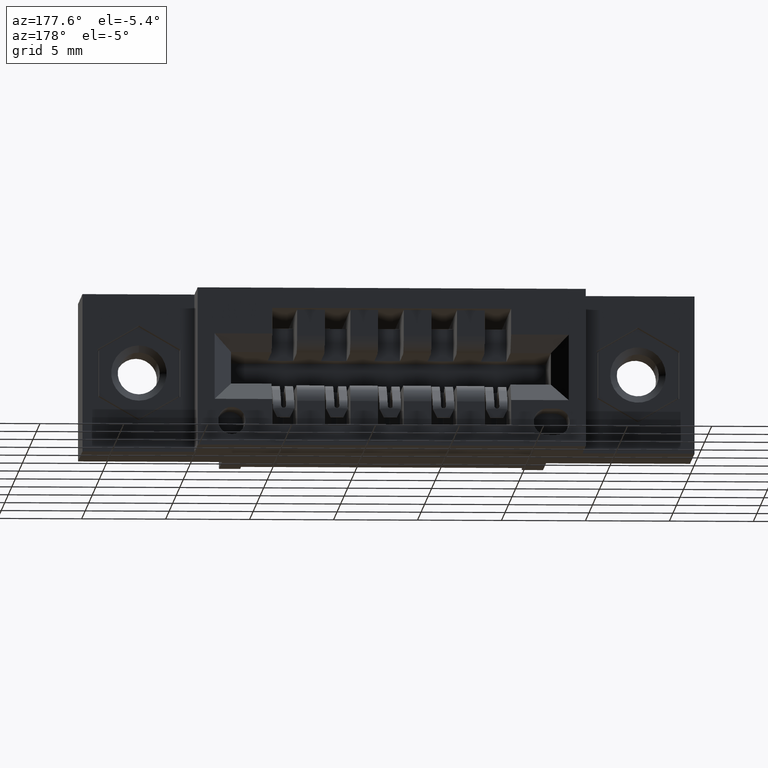
[diagram: clean part render]
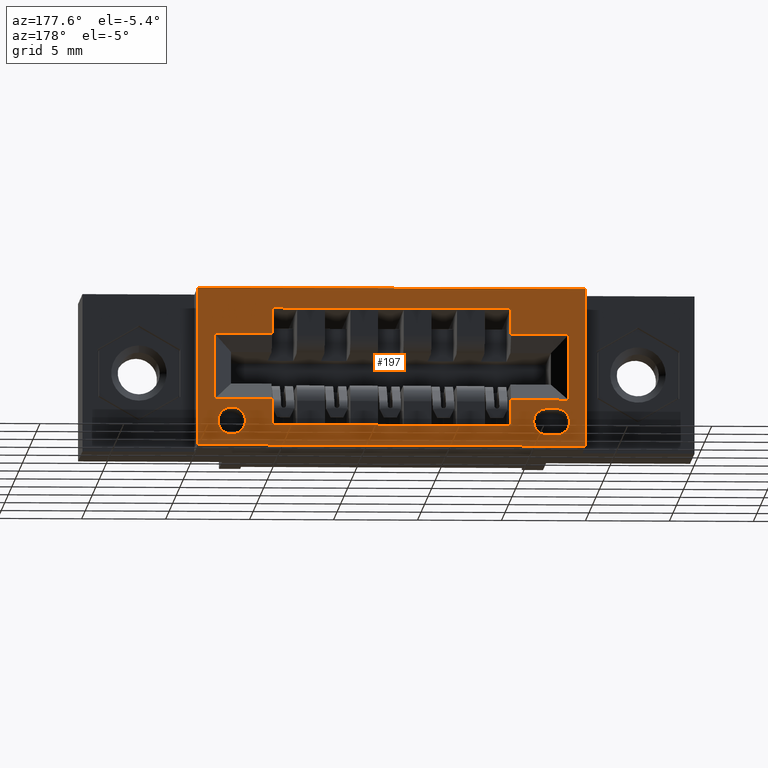
[diagram: same view with one face highlighted and labeled with its STEP entity id]
A machine part, auxiliary view. The second image highlights one B-rep face of the part: STEP entity #197.
In plain terms, the highlighted planar face has unit normal (0, -1, 0).
Its self-contained STEP definition (entity closure, byte-faithful):
#123 = LINE ( 'NONE', #1529, #3059 ) ;
#197 = ADVANCED_FACE ( 'NONE', ( #2745, #8576, #1421, #9189 ), #1234, .F. ) ;
#226 = LINE ( 'NONE', #5295, #3728 ) ;
#308 = VERTEX_POINT ( 'NONE', #8101 ) ;
#346 = CARTESIAN_POINT ( 'NONE',  ( 0.0000000000000000000, 0.5999999999999999778, -0.2620000000000000662 ) ) ;
#426 = DIRECTION ( 'NONE',  ( 0.0000000000000000000, 0.0000000000000000000, -1.000000000000000000 ) ) ;
#433 = LINE ( 'NONE', #8945, #1124 ) ;
#530 = CARTESIAN_POINT ( 'NONE',  ( 0.3315000000000000169, 0.5999999999999999778, -0.2820000000000000839 ) ) ;
#646 = EDGE_CURVE ( 'NONE', #6230, #3064, #3372, .T. ) ;
#743 = EDGE_CURVE ( 'NONE', #7754, #2103, #8076, .T. ) ;
#759 = EDGE_CURVE ( 'NONE', #4172, #9157, #2433, .T. ) ;
#1062 = ORIENTED_EDGE ( 'NONE', *, *, #7926, .F. ) ;
#1063 = CARTESIAN_POINT ( 'NONE',  ( 0.3025000000000000466, 0.5999999999999999778, -0.1080000000000000820 ) ) ;
#1101 = ORIENTED_EDGE ( 'NONE', *, *, #1269, .T. ) ;
#1124 = VECTOR ( 'NONE', #8378, 39.37007874015748143 ) ;
#1145 = DIRECTION ( 'NONE',  ( 0.0000000000000000000, 1.000000000000000000, 0.0000000000000000000 ) ) ;
#1161 = EDGE_LOOP ( 'NONE', ( #2152, #1062, #3889, #1163 ) ) ;
#1163 = ORIENTED_EDGE ( 'NONE', *, *, #2160, .F. ) ;
#1234 = PLANE ( 'NONE',  #8680 ) ;
#1269 = EDGE_CURVE ( 'NONE', #8289, #8028, #8960, .T. ) ;
#1329 = EDGE_CURVE ( 'NONE', #9108, #7754, #1413, .T. ) ;
#1360 = VECTOR ( 'NONE', #1602, 39.37007874015748143 ) ;
#1371 = CARTESIAN_POINT ( 'NONE',  ( 0.0000000000000000000, 0.5999999999999999778, -0.3700000000000001621 ) ) ;
#1374 = VECTOR ( 'NONE', #8442, 39.37007874015748143 ) ;
#1413 = CIRCLE ( 'NONE', #3223, 0.03100000000000009345 ) ;
#1421 = FACE_OUTER_BOUND ( 'NONE', #1161, .T. ) ;
#1529 = CARTESIAN_POINT ( 'NONE',  ( 0.4375000000000000555, 0.5999999999999999778, -0.3224999999999998423 ) ) ;
#1553 = CARTESIAN_POINT ( 'NONE',  ( 0.0000000000000000000, 0.5999999999999999778, -0.1080000000000000820 ) ) ;
#1555 = VECTOR ( 'NONE', #8861, 39.37007874015748143 ) ;
#1602 = DIRECTION ( 'NONE',  ( 1.000000000000000000, 0.0000000000000000000, 0.0000000000000000000 ) ) ;
#1610 = CARTESIAN_POINT ( 'NONE',  ( 1.132500000000000506, 0.5999999999999999778, -0.3700000000000001621 ) ) ;
#1630 = CARTESIAN_POINT ( 'NONE',  ( 0.4375000000000000555, 0.5999999999999999778, -0.2620000000000000662 ) ) ;
#1639 = CARTESIAN_POINT ( 'NONE',  ( 1.132500000000000506, 0.5999999999999999778, -0.2620000000000000662 ) ) ;
#1648 = DIRECTION ( 'NONE',  ( 0.0000000000000000000, 1.000000000000000000, 0.0000000000000000000 ) ) ;
#1725 = EDGE_CURVE ( 'NONE', #8838, #2113, #433, .T. ) ;
#1736 = VECTOR ( 'NONE', #7494, 39.37007874015748143 ) ;
#1781 = CARTESIAN_POINT ( 'NONE',  ( 0.4375000000000000555, 0.5999999999999999778, -0.3224999999999998423 ) ) ;
#1795 = DIRECTION ( 'NONE',  ( 0.0000000000000000000, -2.483498176058424693E-16, 1.000000000000000000 ) ) ;
#1857 = VECTOR ( 'NONE', #2340, 39.37007874015748143 ) ;
#2065 = CARTESIAN_POINT ( 'NONE',  ( 0.4375000000000000555, 0.5999999999999998668, -0.04750000000000024342 ) ) ;
#2103 = VERTEX_POINT ( 'NONE', #4024 ) ;
#2108 = VECTOR ( 'NONE', #8146, 39.37007874015748143 ) ;
#2113 = VERTEX_POINT ( 'NONE', #3154 ) ;
#2152 = ORIENTED_EDGE ( 'NONE', *, *, #6092, .T. ) ;
#2160 = EDGE_CURVE ( 'NONE', #7418, #7468, #2589, .T. ) ;
#2206 = DIRECTION ( 'NONE',  ( 1.000000000000000000, 0.0000000000000000000, 0.0000000000000000000 ) ) ;
#2215 = CARTESIAN_POINT ( 'NONE',  ( 0.3315000000000000724, 0.5999999999999999778, -0.3130000000000000560 ) ) ;
#2236 = CARTESIAN_POINT ( 'NONE',  ( 0.3534999999999999254, 0.5999999999999999778, -0.3440000000000001945 ) ) ;
#2281 = CARTESIAN_POINT ( 'NONE',  ( 0.3534999999999999254, 0.5999999999999999778, -0.2819999999999999729 ) ) ;
#2326 = EDGE_LOOP ( 'NONE', ( #2840, #3076 ) ) ;
#2340 = DIRECTION ( 'NONE',  ( 0.0000000000000000000, -2.483498176058424693E-16, 1.000000000000000000 ) ) ;
#2362 = CARTESIAN_POINT ( 'NONE',  ( 0.0000000000000000000, 0.5999999999999999778, -0.2620000000000000662 ) ) ;
#2433 = LINE ( 'NONE', #8834, #1857 ) ;
#2499 = CIRCLE ( 'NONE', #8246, 0.03099999999999998937 ) ;
#2520 = DIRECTION ( 'NONE',  ( 0.0000000000000000000, 0.0000000000000000000, 1.000000000000000000 ) ) ;
#2589 = LINE ( 'NONE', #5347, #7939 ) ;
#2720 = CARTESIAN_POINT ( 'NONE',  ( 0.4375000000000000555, 0.5999999999999999778, -0.3224999999999998423 ) ) ;
#2732 = VECTOR ( 'NONE', #4624, 39.37007874015748143 ) ;
#2745 = FACE_BOUND ( 'NONE', #2326, .T. ) ;
#2784 = EDGE_CURVE ( 'NONE', #7270, #4954, #6648, .T. ) ;
#2840 = ORIENTED_EDGE ( 'NONE', *, *, #7491, .F. ) ;
#2862 = ORIENTED_EDGE ( 'NONE', *, *, #2784, .T. ) ;
#2959 = ORIENTED_EDGE ( 'NONE', *, *, #4454, .F. ) ;
#2989 = EDGE_CURVE ( 'NONE', #2113, #4385, #8949, .T. ) ;
#2996 = LINE ( 'NONE', #6096, #2732 ) ;
#3059 = VECTOR ( 'NONE', #5142, 39.37007874015748143 ) ;
#3064 = VERTEX_POINT ( 'NONE', #6405 ) ;
#3076 = ORIENTED_EDGE ( 'NONE', *, *, #646, .F. ) ;
#3154 = CARTESIAN_POINT ( 'NONE',  ( 0.9974999999999999423, 0.5999999999999999778, -0.3224999999999997868 ) ) ;
#3163 = ORIENTED_EDGE ( 'NONE', *, *, #1725, .T. ) ;
#3223 = AXIS2_PLACEMENT_3D ( 'NONE', #4842, #1145, #2520 ) ;
#3224 = VECTOR ( 'NONE', #5910, 39.37007874015748143 ) ;
#3304 = ORIENTED_EDGE ( 'NONE', *, *, #1329, .F. ) ;
#3311 = CARTESIAN_POINT ( 'NONE',  ( 0.9974999999999999423, 0.5999999999999998668, -0.1080000000000000820 ) ) ;
#3372 = CIRCLE ( 'NONE', #8364, 0.03200000000000033373 ) ;
#3384 = DIRECTION ( 'NONE',  ( 0.0000000000000000000, -2.483498176058424693E-16, 1.000000000000000000 ) ) ;
#3728 = VECTOR ( 'NONE', #2206, 39.37007874015748143 ) ;
#3734 = CARTESIAN_POINT ( 'NONE',  ( 0.9974999999999999423, 0.5999999999999999778, -0.2620000000000000662 ) ) ;
#3800 = EDGE_LOOP ( 'NONE', ( #4623, #7090, #6164, #1101, #9194, #3163, #7375, #6626, #2862, #8587, #6866, #6963 ) ) ;
#3881 = LINE ( 'NONE', #6345, #4022 ) ;
#3889 = ORIENTED_EDGE ( 'NONE', *, *, #4548, .T. ) ;
#3898 = EDGE_CURVE ( 'NONE', #9215, #8289, #4987, .T. ) ;
#4022 = VECTOR ( 'NONE', #9206, 39.37007874015748143 ) ;
#4024 = CARTESIAN_POINT ( 'NONE',  ( 0.3315000000000000169, 0.5999999999999999778, -0.3440000000000000835 ) ) ;
#4089 = CARTESIAN_POINT ( 'NONE',  ( 0.0000000000000000000, 0.5999999999999999778, -0.1080000000000000820 ) ) ;
#4106 = EDGE_CURVE ( 'NONE', #8515, #9108, #6975, .T. ) ;
#4172 = VERTEX_POINT ( 'NONE', #3311 ) ;
#4196 = VERTEX_POINT ( 'NONE', #5692 ) ;
#4385 = VERTEX_POINT ( 'NONE', #3734 ) ;
#4454 = EDGE_CURVE ( 'NONE', #2103, #8515, #2499, .T. ) ;
#4548 = EDGE_CURVE ( 'NONE', #7511, #7468, #3881, .T. ) ;
#4623 = ORIENTED_EDGE ( 'NONE', *, *, #8972, .F. ) ;
#4624 = DIRECTION ( 'NONE',  ( -0.0000000000000000000, -0.0000000000000000000, 1.000000000000000000 ) ) ;
#4842 = CARTESIAN_POINT ( 'NONE',  ( 0.3534999999999999254, 0.5999999999999999778, -0.3130000000000000560 ) ) ;
#4954 = VERTEX_POINT ( 'NONE', #8349 ) ;
#4987 = LINE ( 'NONE', #5127, #1736 ) ;
#5118 = DIRECTION ( 'NONE',  ( 0.0000000000000000000, 0.0000000000000000000, 1.000000000000000000 ) ) ;
#5127 = CARTESIAN_POINT ( 'NONE',  ( 0.3025000000000000466, 0.5999999999999999778, -0.3700000000000001621 ) ) ;
#5142 = DIRECTION ( 'NONE',  ( 0.0000000000000000000, -2.483498176058424693E-16, 1.000000000000000000 ) ) ;
#5191 = DIRECTION ( 'NONE',  ( 0.0000000000000000000, 0.0000000000000000000, 1.000000000000000000 ) ) ;
#5240 = DIRECTION ( 'NONE',  ( 0.0000000000000000000, 1.000000000000000000, 0.0000000000000000000 ) ) ;
#5248 = CARTESIAN_POINT ( 'NONE',  ( 1.092500000000000471, 0.5999999999999999778, -0.3450000000000004174 ) ) ;
#5260 = LINE ( 'NONE', #1553, #2108 ) ;
#5295 = CARTESIAN_POINT ( 'NONE',  ( 0.0000000000000000000, 0.5999999999999999778, 0.0000000000000000000 ) ) ;
#5331 = EDGE_CURVE ( 'NONE', #8490, #9157, #9006, .T. ) ;
#5347 = CARTESIAN_POINT ( 'NONE',  ( 0.2625000000000000111, 0.5999999999999999778, 0.0000000000000000000 ) ) ;
#5410 = CARTESIAN_POINT ( 'NONE',  ( 0.9974999999999999423, 0.5999999999999999778, -0.3224999999999997868 ) ) ;
#5467 = AXIS2_PLACEMENT_3D ( 'NONE', #6722, #6109, #8981 ) ;
#5516 = VECTOR ( 'NONE', #1795, 39.37007874015748143 ) ;
#5588 = CARTESIAN_POINT ( 'NONE',  ( 0.3315000000000000169, 0.5999999999999999778, -0.2820000000000000839 ) ) ;
#5692 = CARTESIAN_POINT ( 'NONE',  ( 0.4375000000000000555, 0.5999999999999998668, -0.1080000000000000820 ) ) ;
#5887 = LINE ( 'NONE', #2362, #1360 ) ;
#5910 = DIRECTION ( 'NONE',  ( -1.000000000000000000, -0.0000000000000000000, 6.208745440146073961E-15 ) ) ;
#5927 = CIRCLE ( 'NONE', #5467, 0.03200000000000033373 ) ;
#6092 = EDGE_CURVE ( 'NONE', #7418, #308, #226, .T. ) ;
#6096 = CARTESIAN_POINT ( 'NONE',  ( 1.172500000000000764, 0.5999999999999999778, 0.0000000000000000000 ) ) ;
#6109 = DIRECTION ( 'NONE',  ( 0.0000000000000000000, 1.000000000000000000, 0.0000000000000000000 ) ) ;
#6137 = DIRECTION ( 'NONE',  ( 1.000000000000000000, 0.0000000000000000000, 0.0000000000000000000 ) ) ;
#6164 = ORIENTED_EDGE ( 'NONE', *, *, #3898, .T. ) ;
#6230 = VERTEX_POINT ( 'NONE', #5248 ) ;
#6269 = DIRECTION ( 'NONE',  ( 1.000000000000000000, 0.0000000000000000000, 3.104372720073036980E-15 ) ) ;
#6345 = CARTESIAN_POINT ( 'NONE',  ( 0.0000000000000000000, 0.5999999999999999778, -0.3700000000000001621 ) ) ;
#6365 = DIRECTION ( 'NONE',  ( 0.0000000000000000000, -0.0000000000000000000, -1.000000000000000000 ) ) ;
#6405 = CARTESIAN_POINT ( 'NONE',  ( 1.092500000000000471, 0.5999999999999999778, -0.2809999999999996945 ) ) ;
#6596 = EDGE_LOOP ( 'NONE', ( #8872, #2959, #7974, #3304 ) ) ;
#6626 = ORIENTED_EDGE ( 'NONE', *, *, #7045, .T. ) ;
#6648 = LINE ( 'NONE', #1610, #1555 ) ;
#6701 = VECTOR ( 'NONE', #3384, 39.37007874015748143 ) ;
#6722 = CARTESIAN_POINT ( 'NONE',  ( 1.092500000000000471, 0.5999999999999999778, -0.3130000000000000560 ) ) ;
#6772 = CARTESIAN_POINT ( 'NONE',  ( 1.172500000000000764, 0.5999999999999999778, -0.3699999999999999400 ) ) ;
#6866 = ORIENTED_EDGE ( 'NONE', *, *, #759, .T. ) ;
#6963 = ORIENTED_EDGE ( 'NONE', *, *, #5331, .F. ) ;
#6975 = LINE ( 'NONE', #530, #7944 ) ;
#6986 = LINE ( 'NONE', #4089, #1374 ) ;
#7045 = EDGE_CURVE ( 'NONE', #4385, #7270, #5887, .T. ) ;
#7077 = DIRECTION ( 'NONE',  ( 0.0000000000000000000, -1.000000000000000000, 0.0000000000000000000 ) ) ;
#7090 = ORIENTED_EDGE ( 'NONE', *, *, #7091, .T. ) ;
#7091 = EDGE_CURVE ( 'NONE', #4196, #9215, #5260, .T. ) ;
#7270 = VERTEX_POINT ( 'NONE', #1639 ) ;
#7364 = VECTOR ( 'NONE', #9185, 39.37007874015748143 ) ;
#7375 = ORIENTED_EDGE ( 'NONE', *, *, #2989, .T. ) ;
#7418 = VERTEX_POINT ( 'NONE', #8270 ) ;
#7468 = VERTEX_POINT ( 'NONE', #9032 ) ;
#7491 = EDGE_CURVE ( 'NONE', #3064, #6230, #5927, .T. ) ;
#7494 = DIRECTION ( 'NONE',  ( 0.0000000000000000000, 0.0000000000000000000, -1.000000000000000000 ) ) ;
#7511 = VERTEX_POINT ( 'NONE', #6772 ) ;
#7621 = VECTOR ( 'NONE', #6137, 39.37007874015748143 ) ;
#7681 = CARTESIAN_POINT ( 'NONE',  ( 0.4375000000000000555, 0.5999999999999998668, -0.04750000000000024342 ) ) ;
#7754 = VERTEX_POINT ( 'NONE', #2236 ) ;
#7828 = CARTESIAN_POINT ( 'NONE',  ( 0.3025000000000000466, 0.5999999999999999778, -0.2620000000000000662 ) ) ;
#7926 = EDGE_CURVE ( 'NONE', #7511, #308, #2996, .T. ) ;
#7935 = CARTESIAN_POINT ( 'NONE',  ( 0.9974999999999999423, 0.5999999999999998668, -0.04750000000000019484 ) ) ;
#7939 = VECTOR ( 'NONE', #426, 39.37007874015748143 ) ;
#7944 = VECTOR ( 'NONE', #6269, 39.37007874015748143 ) ;
#7974 = ORIENTED_EDGE ( 'NONE', *, *, #743, .F. ) ;
#8028 = VERTEX_POINT ( 'NONE', #1630 ) ;
#8059 = EDGE_CURVE ( 'NONE', #4954, #4172, #6986, .T. ) ;
#8076 = LINE ( 'NONE', #8784, #3224 ) ;
#8101 = CARTESIAN_POINT ( 'NONE',  ( 1.172500000000000764, 0.5999999999999999778, 0.0000000000000000000 ) ) ;
#8146 = DIRECTION ( 'NONE',  ( -1.000000000000000000, 0.0000000000000000000, 0.0000000000000000000 ) ) ;
#8173 = CARTESIAN_POINT ( 'NONE',  ( 1.092500000000000471, 0.5999999999999999778, -0.3130000000000000560 ) ) ;
#8246 = AXIS2_PLACEMENT_3D ( 'NONE', #2215, #1648, #5118 ) ;
#8270 = CARTESIAN_POINT ( 'NONE',  ( 0.2625000000000000111, 0.5999999999999999778, 0.0000000000000000000 ) ) ;
#8289 = VERTEX_POINT ( 'NONE', #7828 ) ;
#8349 = CARTESIAN_POINT ( 'NONE',  ( 1.132500000000000506, 0.5999999999999999778, -0.1080000000000000820 ) ) ;
#8361 = LINE ( 'NONE', #2720, #6701 ) ;
#8364 = AXIS2_PLACEMENT_3D ( 'NONE', #8173, #5240, #5191 ) ;
#8378 = DIRECTION ( 'NONE',  ( 1.000000000000000000, -0.0000000000000000000, -0.0000000000000000000 ) ) ;
#8442 = DIRECTION ( 'NONE',  ( -1.000000000000000000, 0.0000000000000000000, 0.0000000000000000000 ) ) ;
#8490 = VERTEX_POINT ( 'NONE', #2065 ) ;
#8515 = VERTEX_POINT ( 'NONE', #5588 ) ;
#8576 = FACE_BOUND ( 'NONE', #6596, .T. ) ;
#8587 = ORIENTED_EDGE ( 'NONE', *, *, #8059, .T. ) ;
#8680 = AXIS2_PLACEMENT_3D ( 'NONE', #1371, #7077, #6365 ) ;
#8784 = CARTESIAN_POINT ( 'NONE',  ( 0.3315000000000000169, 0.5999999999999999778, -0.3440000000000000835 ) ) ;
#8834 = CARTESIAN_POINT ( 'NONE',  ( 0.9974999999999999423, 0.5999999999999999778, -0.3224999999999997868 ) ) ;
#8838 = VERTEX_POINT ( 'NONE', #1781 ) ;
#8861 = DIRECTION ( 'NONE',  ( 0.0000000000000000000, 0.0000000000000000000, 1.000000000000000000 ) ) ;
#8872 = ORIENTED_EDGE ( 'NONE', *, *, #4106, .F. ) ;
#8945 = CARTESIAN_POINT ( 'NONE',  ( 0.4375000000000000555, 0.5999999999999999778, -0.3224999999999998423 ) ) ;
#8949 = LINE ( 'NONE', #5410, #5516 ) ;
#8960 = LINE ( 'NONE', #346, #7621 ) ;
#8972 = EDGE_CURVE ( 'NONE', #4196, #8490, #8361, .T. ) ;
#8981 = DIRECTION ( 'NONE',  ( 0.0000000000000000000, 0.0000000000000000000, 1.000000000000000000 ) ) ;
#9006 = LINE ( 'NONE', #7681, #7364 ) ;
#9032 = CARTESIAN_POINT ( 'NONE',  ( 0.2625000000000000111, 0.5999999999999999778, -0.3700000000000001621 ) ) ;
#9108 = VERTEX_POINT ( 'NONE', #2281 ) ;
#9136 = EDGE_CURVE ( 'NONE', #8838, #8028, #123, .T. ) ;
#9157 = VERTEX_POINT ( 'NONE', #7935 ) ;
#9185 = DIRECTION ( 'NONE',  ( 1.000000000000000000, -0.0000000000000000000, -0.0000000000000000000 ) ) ;
#9189 = FACE_BOUND ( 'NONE', #3800, .T. ) ;
#9194 = ORIENTED_EDGE ( 'NONE', *, *, #9136, .F. ) ;
#9206 = DIRECTION ( 'NONE',  ( -1.000000000000000000, -0.0000000000000000000, -9.518634124265722614E-17 ) ) ;
#9215 = VERTEX_POINT ( 'NONE', #1063 ) ;